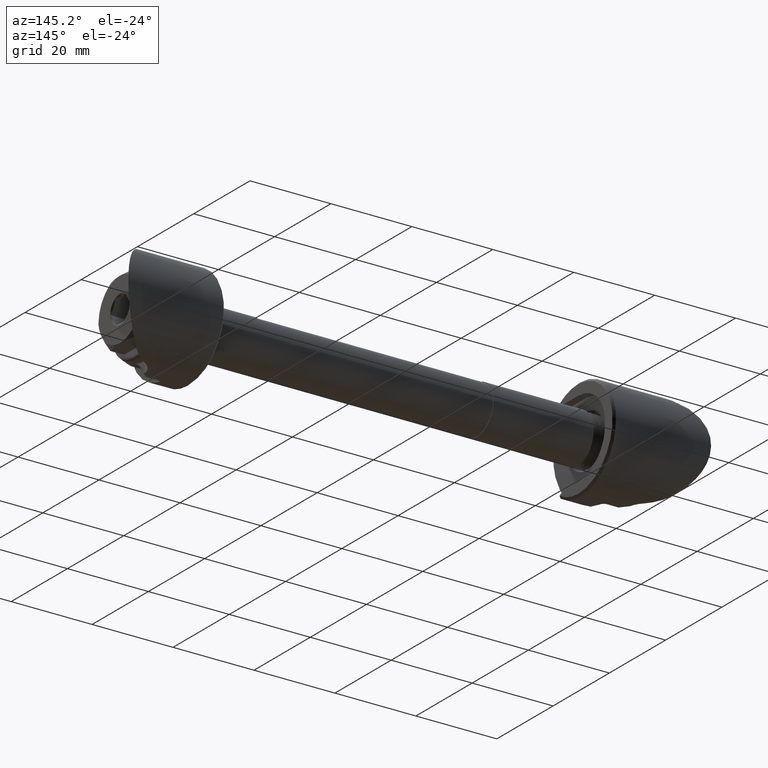
[diagram: clean part render]
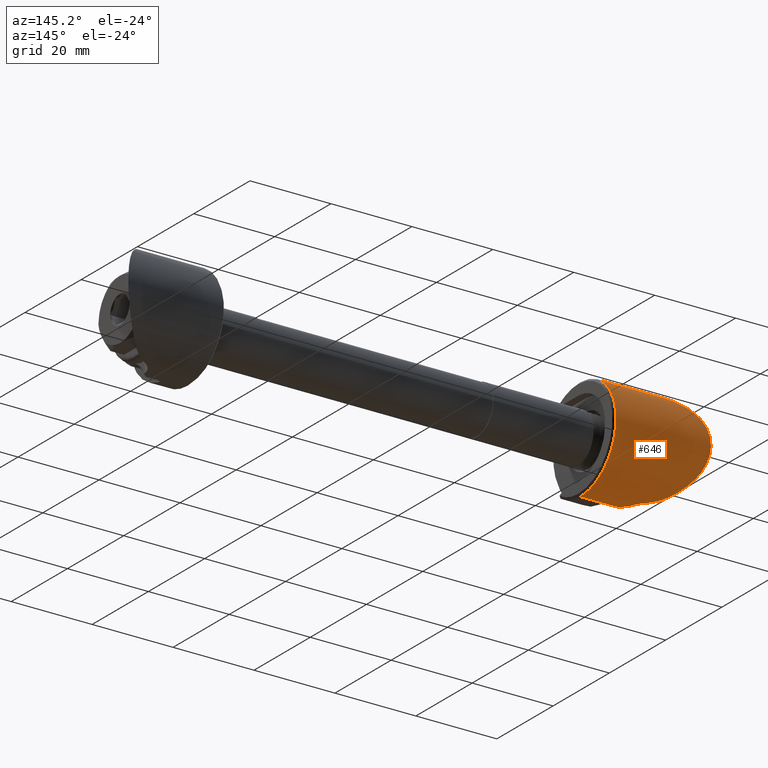
[diagram: same view with one face highlighted and labeled with its STEP entity id]
A machine part, auxiliary view. The second image highlights one B-rep face of the part: STEP entity #646.
In plain terms, the highlighted cylindrical surface (partial cylindrical patch) has radius 12.7 mm, axis along (1, 0, 0).
Its self-contained STEP definition (entity closure, byte-faithful):
#12 = CARTESIAN_POINT ( 'NONE',  ( -12.96768896112964800, 3.212099023464392900, -12.28867408637643000 ) ) ;
#23 = CARTESIAN_POINT ( 'NONE',  ( -11.80396143968759400, 2.023025486956976600, -12.54372497318342100 ) ) ;
#69 =( BOUNDED_CURVE ( )  B_SPLINE_CURVE ( 3, ( #3739, #3889, #3673, #3642 ),
 .UNSPECIFIED., .F., .F. ) 
 B_SPLINE_CURVE_WITH_KNOTS ( ( 4, 4 ),
 ( 1.570796326794941400, 1.700448579559718200 ),
 .UNSPECIFIED. ) 
 CURVE ( )  GEOMETRIC_REPRESENTATION_ITEM ( )  RATIONAL_B_SPLINE_CURVE ( ( 1.000000000000000000, 0.9985996816104223400, 0.9985996816104223400, 1.000000000000000000 ) ) 
 REPRESENTATION_ITEM ( '' )  );
#81 = CARTESIAN_POINT ( 'NONE',  ( -0.5080000000000015600, -1.555301434917138400E-015, -12.69999999999999900 ) ) ;
#209 = CARTESIAN_POINT ( 'NONE',  ( -12.19162620934183200, 2.516289995468931300, 12.44915093084755100 ) ) ;
#231 = CARTESIAN_POINT ( 'NONE',  ( -18.24512640288175200, 6.945126402881754800, 10.63274279045603500 ) ) ;
#305 = CARTESIAN_POINT ( 'NONE',  ( -11.62197438789307400, 1.641974387893074600, 12.59340780366868100 ) ) ;
#310 = VECTOR ( 'NONE', #3459, 1000.000000000000000 ) ;
#402 = CARTESIAN_POINT ( 'NONE',  ( -12.97655363854561400, 3.196732092285544400, 12.29175088137646000 ) ) ;
#416 = ORIENTED_EDGE ( 'NONE', *, *, #1945, .T. ) ;
#462 = CARTESIAN_POINT ( 'NONE',  ( -24.00000000000000000, 0.0000000000000000000, 12.69999999999999900 ) ) ;
#486 = CARTESIAN_POINT ( 'NONE',  ( -17.54404228985949400, 6.269939826284400800, 11.05048019908129900 ) ) ;
#620 = CARTESIAN_POINT ( 'NONE',  ( -13.34579037021300300, 3.402585097414246600, 12.23570245857811400 ) ) ;
#646 = ADVANCED_FACE ( 'NONE', ( #5089 ), #2987, .T. ) ;
#675 = CARTESIAN_POINT ( 'NONE',  ( -11.07733827824787000, 1.097338278247868200, 12.66441944378237100 ) ) ;
#705 = VERTEX_POINT ( 'NONE', #3288 ) ;
#769 = CARTESIAN_POINT ( 'NONE',  ( -18.24512640288175200, 6.945126402881754800, -10.63274279045603500 ) ) ;
#862 = CARTESIAN_POINT ( 'NONE',  ( -14.28240817745570900, 3.874449641177033500, 12.10448324414879900 ) ) ;
#932 = CARTESIAN_POINT ( 'NONE',  ( -17.90512060348383400, 6.605120603483841900, 10.85482878473504300 ) ) ;
#966 = ORIENTED_EDGE ( 'NONE', *, *, #5218, .T. ) ;
#988 = VERTEX_POINT ( 'NONE', #5378 ) ;
#1008 =( BOUNDED_CURVE ( )  B_SPLINE_CURVE ( 3, ( #5187, #1432, #1821, #2599 ),
 .UNSPECIFIED., .F., .F. ) 
 B_SPLINE_CURVE_WITH_KNOTS ( ( 4, 4 ),
 ( 2.149405875325540300, 4.133779431854046400 ),
 .UNSPECIFIED. ) 
 CURVE ( )  GEOMETRIC_REPRESENTATION_ITEM ( )  RATIONAL_B_SPLINE_CURVE ( ( 1.000000000000000000, 0.6979068977890682300, 0.6979068977890682300, 1.000000000000000000 ) ) 
 REPRESENTATION_ITEM ( '' )  );
#1089 = CARTESIAN_POINT ( 'NONE',  ( -9.979999999999998600, 1.019903212331638800E-015, 12.69999999999999900 ) ) ;
#1155 = CARTESIAN_POINT ( 'NONE',  ( -12.48231647619924100, 2.813330978636861900, 12.38540443606754600 ) ) ;
#1223 = CARTESIAN_POINT ( 'NONE',  ( -13.34579037021300300, 3.402585097414246600, 12.23570245857811400 ) ) ;
#1264 = EDGE_CURVE ( 'NONE', #1996, #1765, #2893, .T. ) ;
#1326 = VERTEX_POINT ( 'NONE', #3624 ) ;
#1399 = CARTESIAN_POINT ( 'NONE',  ( -12.63915382616845300, 2.949465818339147600, 12.35341601283289300 ) ) ;
#1427 = VERTEX_POINT ( 'NONE', #81 ) ;
#1432 = CARTESIAN_POINT ( 'NONE',  ( -26.74863481807739900, 15.44863481807739300, 5.078395998157724000 ) ) ;
#1585 = CARTESIAN_POINT ( 'NONE',  ( -12.05675785155349500, 2.353825340367245600, 12.48118076190703000 ) ) ;
#1664 = CARTESIAN_POINT ( 'NONE',  ( 26.39806331424733100, 1.019903212331638800E-015, -12.69999999999999900 ) ) ;
#1694 = B_SPLINE_CURVE_WITH_KNOTS ( 'NONE', 3,
 ( #1743, #2197, #5150, #3894, #1725, #3064 ),
 .UNSPECIFIED., .F., .F.,
 ( 4, 2, 4 ),
 ( 0.0000000000000000000, 0.003130358595050708100, 0.006260717190101411900 ),
 .UNSPECIFIED. ) ;
#1725 = CARTESIAN_POINT ( 'NONE',  ( -14.28358929394649100, 3.875044683241936700, -12.10431777091428900 ) ) ;
#1743 = CARTESIAN_POINT ( 'NONE',  ( -18.24512640288175200, 6.945126402881754800, -10.63274279045603500 ) ) ;
#1765 = VERTEX_POINT ( 'NONE', #1089 ) ;
#1786 = CARTESIAN_POINT ( 'NONE',  ( -0.5080000000000015600, 0.0000000000000000000, 0.0000000000000000000 ) ) ;
#1813 = EDGE_CURVE ( 'NONE', #1818, #1765, #4914, .T. ) ;
#1818 = VERTEX_POINT ( 'NONE', #2844 ) ;
#1821 = CARTESIAN_POINT ( 'NONE',  ( -26.74863481807739200, 15.44863481807739100, -5.078395998157727600 ) ) ;
#1824 = CARTESIAN_POINT ( 'NONE',  ( -11.71198448744473100, 1.830440803623206000, 12.56883486579266100 ) ) ;
#1888 = CARTESIAN_POINT ( 'NONE',  ( 26.39806331424733100, 1.019903212331638800E-015, 12.69999999999999900 ) ) ;
#1945 = EDGE_CURVE ( 'NONE', #1818, #1326, #4730, .T. ) ;
#1952 = EDGE_CURVE ( 'NONE', #5085, #4846, #1694, .T. ) ;
#1984 = DIRECTION ( 'NONE',  ( 1.000000000000000000, -0.0000000000000000000, -0.0000000000000000000 ) ) ;
#1996 = VERTEX_POINT ( 'NONE', #5199 ) ;
#2040 = CIRCLE ( 'NONE', #2902, 12.69999999999999900 ) ;
#2124 = DIRECTION ( 'NONE',  ( -1.000000000000000000, 0.0000000000000000000, 0.0000000000000000000 ) ) ;
#2128 = B_SPLINE_CURVE_WITH_KNOTS ( 'NONE', 3,
 ( #2171, #862, #5095, #5134, #3405, #486, #932, #3480 ),
 .UNSPECIFIED., .F., .F.,
 ( 4, 2, 2, 4 ),
 ( 1.484684143736287600E-017, 0.003132018390789321800, 0.004698027586183975100, 0.006264036781578628800 ),
 .UNSPECIFIED. ) ;
#2171 = CARTESIAN_POINT ( 'NONE',  ( -13.34579037021300300, 3.402585097414246600, 12.23570245857811400 ) ) ;
#2197 = CARTESIAN_POINT ( 'NONE',  ( -17.56401677808344500, 6.264016778083449900, -11.07763199088789300 ) ) ;
#2238 = EDGE_CURVE ( 'NONE', #2384, #2727, #2128, .T. ) ;
#2384 = VERTEX_POINT ( 'NONE', #1223 ) ;
#2538 = LINE ( 'NONE', #1664, #3406 ) ;
#2556 = CARTESIAN_POINT ( 'NONE',  ( -12.04337347347684300, 2.364999380848658900, -12.48164169869068600 ) ) ;
#2582 = ORIENTED_EDGE ( 'NONE', *, *, #3919, .F. ) ;
#2599 = CARTESIAN_POINT ( 'NONE',  ( -18.24512640288175200, 6.945126402881754800, -10.63274279045603500 ) ) ;
#2624 = B_SPLINE_CURVE_WITH_KNOTS ( 'NONE', 3,
 ( #2724, #1824, #3799, #1585, #209, #1155, #1399, #402, #2754, #620 ),
 .UNSPECIFIED., .F., .F.,
 ( 4, 2, 2, 2, 4 ),
 ( 0.001692763937087805000, 0.002322503628548211800, 0.002952243320008618800, 0.003581983011469025300, 0.004211722702929431900 ),
 .UNSPECIFIED. ) ;
#2686 = EDGE_CURVE ( 'NONE', #1326, #1427, #2040, .T. ) ;
#2716 = EDGE_LOOP ( 'NONE', ( #4219, #966, #4442, #5166, #2833, #3710, #3914, #2582, #5445, #4017, #416, #4535 ) ) ;
#2724 = CARTESIAN_POINT ( 'NONE',  ( -11.62197438789307400, 1.641974387893074600, 12.59340780366868100 ) ) ;
#2727 = VERTEX_POINT ( 'NONE', #231 ) ;
#2745 = AXIS2_PLACEMENT_3D ( 'NONE', #3494, #1984, #4254 ) ;
#2754 = CARTESIAN_POINT ( 'NONE',  ( -13.15711749947747200, 3.307532411695911700, 12.26213533834037500 ) ) ;
#2833 = ORIENTED_EDGE ( 'NONE', *, *, #1952, .F. ) ;
#2844 = CARTESIAN_POINT ( 'NONE',  ( -7.142999999999999800, 1.019903212331638800E-015, 12.69999999999999900 ) ) ;
#2893 =( BOUNDED_CURVE ( )  B_SPLINE_CURVE ( 3, ( #305, #675, #3801, #3629 ),
 .UNSPECIFIED., .F., .T. ) 
 B_SPLINE_CURVE_WITH_KNOTS ( ( 4, 4 ),
 ( 4.582736727619913400, 4.712388980384689700 ),
 .UNSPECIFIED. ) 
 CURVE ( )  GEOMETRIC_REPRESENTATION_ITEM ( )  RATIONAL_B_SPLINE_CURVE ( ( 1.000000000000000000, 0.9985996816104223400, 0.9985996816104223400, 1.000000000000000000 ) ) 
 REPRESENTATION_ITEM ( '' )  );
#2902 = AXIS2_PLACEMENT_3D ( 'NONE', #1786, #2124, #3067 ) ;
#2980 = CARTESIAN_POINT ( 'NONE',  ( -13.34579037021300300, 3.402585097414246600, -12.23570245857811400 ) ) ;
#2987 = CYLINDRICAL_SURFACE ( 'NONE', #2745, 12.69999999999999900 ) ;
#3000 = CARTESIAN_POINT ( 'NONE',  ( -11.62197438789307200, 1.641974387893079300, -12.59340780366868100 ) ) ;
#3064 = CARTESIAN_POINT ( 'NONE',  ( -13.34579037021300300, 3.402585097414246600, -12.23570245857811400 ) ) ;
#3067 = DIRECTION ( 'NONE',  ( 0.0000000000000000000, 0.0000000000000000000, 1.000000000000000000 ) ) ;
#3103 = EDGE_CURVE ( 'NONE', #2727, #5085, #1008, .T. ) ;
#3126 = EDGE_CURVE ( 'NONE', #988, #1427, #3732, .T. ) ;
#3165 = DIRECTION ( 'NONE',  ( -1.000000000000000000, 0.0000000000000000000, 0.0000000000000000000 ) ) ;
#3288 = CARTESIAN_POINT ( 'NONE',  ( -9.979999999999998600, 1.019903212331638800E-015, -12.69999999999999900 ) ) ;
#3405 = CARTESIAN_POINT ( 'NONE',  ( -16.78489419314725200, 5.619955646283469400, 11.39479515346027200 ) ) ;
#3406 = VECTOR ( 'NONE', #5078, 1000.000000000000000 ) ;
#3415 = CARTESIAN_POINT ( 'NONE',  ( -24.00000000000000000, -1.555301434917138400E-015, -12.69999999999999900 ) ) ;
#3459 = DIRECTION ( 'NONE',  ( 1.000000000000000000, -0.0000000000000000000, -0.0000000000000000000 ) ) ;
#3469 = DIRECTION ( 'NONE',  ( 1.000000000000000000, -0.0000000000000000000, -0.0000000000000000000 ) ) ;
#3480 = CARTESIAN_POINT ( 'NONE',  ( -18.24512640288175200, 6.945126402881754800, 10.63274279045603500 ) ) ;
#3494 = CARTESIAN_POINT ( 'NONE',  ( -24.00000000000000000, 0.0000000000000000000, 0.0000000000000000000 ) ) ;
#3624 = CARTESIAN_POINT ( 'NONE',  ( -0.5080000000000015600, 0.0000000000000000000, 12.69999999999999900 ) ) ;
#3629 = CARTESIAN_POINT ( 'NONE',  ( -9.979999999999998600, 1.019903212331638800E-015, 12.69999999999999900 ) ) ;
#3642 = CARTESIAN_POINT ( 'NONE',  ( -11.62197438789307200, 1.641974387893079300, -12.59340780366868100 ) ) ;
#3673 = CARTESIAN_POINT ( 'NONE',  ( -11.07733827824786500, 1.097338278247868000, -12.66441944378237500 ) ) ;
#3710 = ORIENTED_EDGE ( 'NONE', *, *, #3103, .F. ) ;
#3732 = LINE ( 'NONE', #3415, #310 ) ;
#3739 = CARTESIAN_POINT ( 'NONE',  ( -9.979999999999998600, 1.019903212331638800E-015, -12.69999999999999900 ) ) ;
#3771 = EDGE_CURVE ( 'NONE', #705, #5464, #69, .T. ) ;
#3799 = CARTESIAN_POINT ( 'NONE',  ( -11.81686853090916700, 2.010486361394491000, 12.54106500800470100 ) ) ;
#3801 = CARTESIAN_POINT ( 'NONE',  ( -10.52924597855707000, 0.5492459785570678000, 12.69999999999999800 ) ) ;
#3889 = CARTESIAN_POINT ( 'NONE',  ( -10.52924597855706400, 0.5492459785570661400, -12.70000000000000100 ) ) ;
#3894 = CARTESIAN_POINT ( 'NONE',  ( -15.17612647417591100, 4.423647469337547400, -11.92238054659547900 ) ) ;
#3914 = ORIENTED_EDGE ( 'NONE', *, *, #2238, .F. ) ;
#3919 = EDGE_CURVE ( 'NONE', #1996, #2384, #2624, .T. ) ;
#4017 = ORIENTED_EDGE ( 'NONE', *, *, #1813, .F. ) ;
#4047 = CARTESIAN_POINT ( 'NONE',  ( -11.62197438789307200, 1.641974387893079300, -12.59340780366868100 ) ) ;
#4219 = ORIENTED_EDGE ( 'NONE', *, *, #3126, .F. ) ;
#4254 = DIRECTION ( 'NONE',  ( 0.0000000000000000000, 0.0000000000000000000, 1.000000000000000000 ) ) ;
#4442 = ORIENTED_EDGE ( 'NONE', *, *, #3771, .T. ) ;
#4505 = EDGE_CURVE ( 'NONE', #4846, #5464, #4932, .T. ) ;
#4535 = ORIENTED_EDGE ( 'NONE', *, *, #2686, .T. ) ;
#4730 = LINE ( 'NONE', #462, #4767 ) ;
#4767 = VECTOR ( 'NONE', #3469, 1000.000000000000000 ) ;
#4846 = VERTEX_POINT ( 'NONE', #4880 ) ;
#4880 = CARTESIAN_POINT ( 'NONE',  ( -13.34579037021300300, 3.402585097414246600, -12.23570245857811400 ) ) ;
#4914 = LINE ( 'NONE', #1888, #4921 ) ;
#4921 = VECTOR ( 'NONE', #3165, 1000.000000000000000 ) ;
#4932 = B_SPLINE_CURVE_WITH_KNOTS ( 'NONE', 3,
 ( #2980, #12, #5113, #2556, #23, #3000 ),
 .UNSPECIFIED., .F., .F.,
 ( 4, 2, 4 ),
 ( 0.0000000000000000000, 0.001261641158883235500, 0.002523282317766471100 ),
 .UNSPECIFIED. ) ;
#5078 = DIRECTION ( 'NONE',  ( -1.000000000000000000, 0.0000000000000000000, 0.0000000000000000000 ) ) ;
#5085 = VERTEX_POINT ( 'NONE', #769 ) ;
#5089 = FACE_OUTER_BOUND ( 'NONE', #2716, .T. ) ;
#5095 = CARTESIAN_POINT ( 'NONE',  ( -15.16090958306253000, 4.413739373012243800, 11.92600477129596800 ) ) ;
#5113 = CARTESIAN_POINT ( 'NONE',  ( -12.63235237079929300, 2.966443099129645800, -12.35252269398987000 ) ) ;
#5134 = CARTESIAN_POINT ( 'NONE',  ( -16.39002214498956200, 5.307749801144475500, 11.54222523229008800 ) ) ;
#5150 = CARTESIAN_POINT ( 'NONE',  ( -16.81329090716229800, 5.616800309341393800, -11.40891621127078500 ) ) ;
#5166 = ORIENTED_EDGE ( 'NONE', *, *, #4505, .F. ) ;
#5187 = CARTESIAN_POINT ( 'NONE',  ( -18.24512640288175200, 6.945126402881754800, 10.63274279045603500 ) ) ;
#5199 = CARTESIAN_POINT ( 'NONE',  ( -11.62197438789307400, 1.641974387893074600, 12.59340780366868100 ) ) ;
#5218 = EDGE_CURVE ( 'NONE', #988, #705, #2538, .T. ) ;
#5378 = CARTESIAN_POINT ( 'NONE',  ( -7.142999999999999800, 1.019903212331638800E-015, -12.69999999999999900 ) ) ;
#5445 = ORIENTED_EDGE ( 'NONE', *, *, #1264, .T. ) ;
#5464 = VERTEX_POINT ( 'NONE', #4047 ) ;